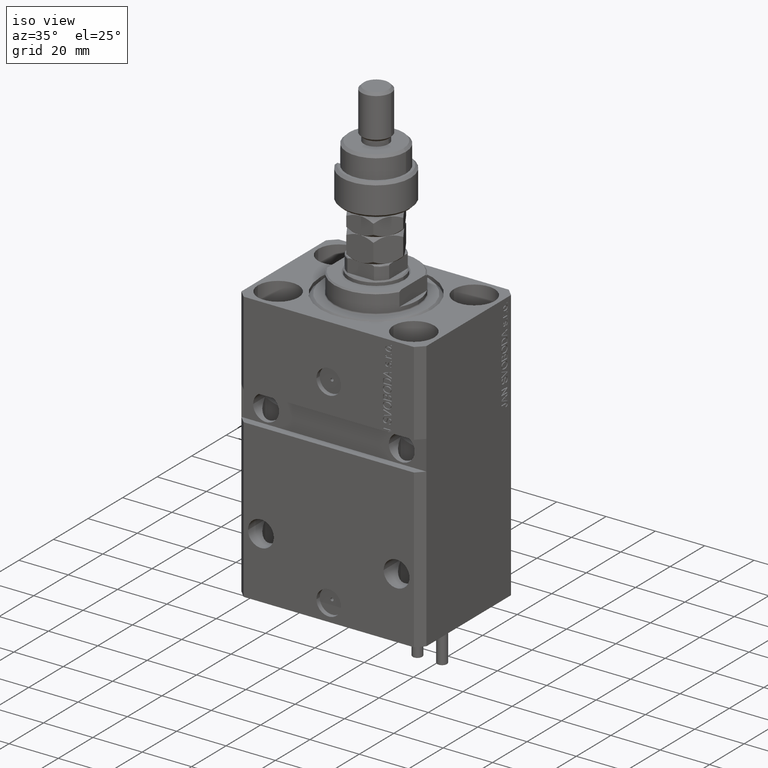
[diagram: clean part render]
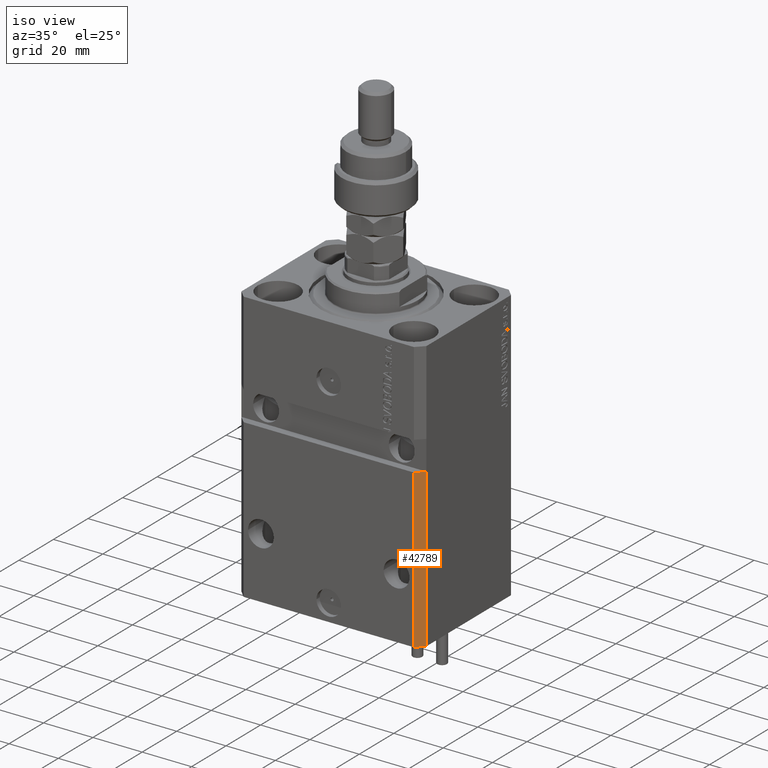
[diagram: same view with one face highlighted and labeled with its STEP entity id]
A machine part, iso view. The second image highlights one B-rep face of the part: STEP entity #42789.
In plain terms, the highlighted planar face has unit normal (0.7071, -0.7071, 0).
Its self-contained STEP definition (entity closure, byte-faithful):
#71 = EDGE_CURVE ( 'NONE', #30331, #36224, #22238, .T. ) ;
#1231 = LINE ( 'NONE', #48398, #14314 ) ;
#2352 = EDGE_CURVE ( 'NONE', #3829, #30331, #1231, .T. ) ;
#3829 = VERTEX_POINT ( 'NONE', #44926 ) ;
#5222 = DIRECTION ( 'NONE',  ( 0.7071067811865474617, 0.7071067811865474617, 0.000000000000000000 ) ) ;
#6449 = CARTESIAN_POINT ( 'NONE',  ( 37.49999999999999289, -24.50000000000000000, -110.0000000000000000 ) ) ;
#9248 = ORIENTED_EDGE ( 'NONE', *, *, #32192, .T. ) ;
#9270 = EDGE_CURVE ( 'NONE', #3829, #10875, #21201, .T. ) ;
#9687 = CARTESIAN_POINT ( 'NONE',  ( 37.49999999999999289, -24.50000000000000000, -110.0000000000000000 ) ) ;
#10875 = VERTEX_POINT ( 'NONE', #9687 ) ;
#11058 = ORIENTED_EDGE ( 'NONE', *, *, #2352, .F. ) ;
#13038 = DIRECTION ( 'NONE',  ( 0.7071067811865474617, 0.7071067811865474617, 0.000000000000000000 ) ) ;
#14314 = VECTOR ( 'NONE', #32676, 1000.000000000000000 ) ;
#17982 = ORIENTED_EDGE ( 'NONE', *, *, #9270, .T. ) ;
#18058 = LINE ( 'NONE', #6449, #33271 ) ;
#21201 = LINE ( 'NONE', #45429, #34309 ) ;
#21283 = DIRECTION ( 'NONE',  ( 0.7071067811865475727, -0.7071067811865475727, 0.000000000000000000 ) ) ;
#22238 = LINE ( 'NONE', #37964, #39843 ) ;
#25528 = DIRECTION ( 'NONE',  ( 0.000000000000000000, 0.000000000000000000, 1.000000000000000000 ) ) ;
#27649 = CARTESIAN_POINT ( 'NONE',  ( 37.49999999999999289, -24.49999999999999289, -46.00000000000000711 ) ) ;
#29214 = ORIENTED_EDGE ( 'NONE', *, *, #71, .F. ) ;
#30331 = VERTEX_POINT ( 'NONE', #31728 ) ;
#31728 = CARTESIAN_POINT ( 'NONE',  ( 34.49999999999999289, -27.49999999999999289, -46.00000000000000711 ) ) ;
#32192 = EDGE_CURVE ( 'NONE', #10875, #36224, #18058, .T. ) ;
#32676 = DIRECTION ( 'NONE',  ( 0.000000000000000000, 0.000000000000000000, 1.000000000000000000 ) ) ;
#33147 = CARTESIAN_POINT ( 'NONE',  ( 34.49999999999999289, -27.49999999999999645, -110.0000000000000000 ) ) ;
#33271 = VECTOR ( 'NONE', #25528, 1000.000000000000000 ) ;
#34309 = VECTOR ( 'NONE', #5222, 1000.000000000000114 ) ;
#36224 = VERTEX_POINT ( 'NONE', #27649 ) ;
#36765 = DIRECTION ( 'NONE',  ( 0.7071067811865474617, 0.7071067811865474617, -6.542051911182397555E-17 ) ) ;
#37964 = CARTESIAN_POINT ( 'NONE',  ( 34.49999999999999289, -27.49999999999999289, -46.00000000000000000 ) ) ;
#39843 = VECTOR ( 'NONE', #36765, 1000.000000000000114 ) ;
#42789 = ADVANCED_FACE ( 'NONE', ( #44239 ), #48353, .T. ) ;
#44239 = FACE_OUTER_BOUND ( 'NONE', #50977, .T. ) ;
#44926 = CARTESIAN_POINT ( 'NONE',  ( 34.49999999999999289, -27.49999999999999645, -110.0000000000000000 ) ) ;
#45429 = CARTESIAN_POINT ( 'NONE',  ( 34.49999999999999289, -27.49999999999999645, -110.0000000000000000 ) ) ;
#48353 = PLANE ( 'NONE',  #49197 ) ;
#48398 = CARTESIAN_POINT ( 'NONE',  ( 34.49999999999999289, -27.49999999999999645, -110.0000000000000000 ) ) ;
#49197 = AXIS2_PLACEMENT_3D ( 'NONE', #33147, #21283, #13038 ) ;
#50977 = EDGE_LOOP ( 'NONE', ( #29214, #11058, #17982, #9248 ) ) ;